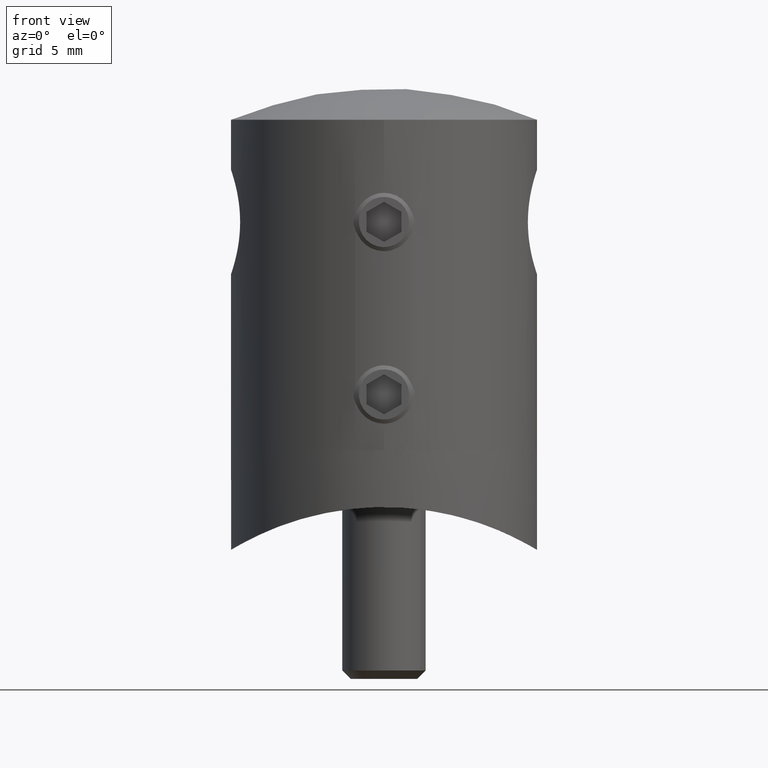
[diagram: clean part render]
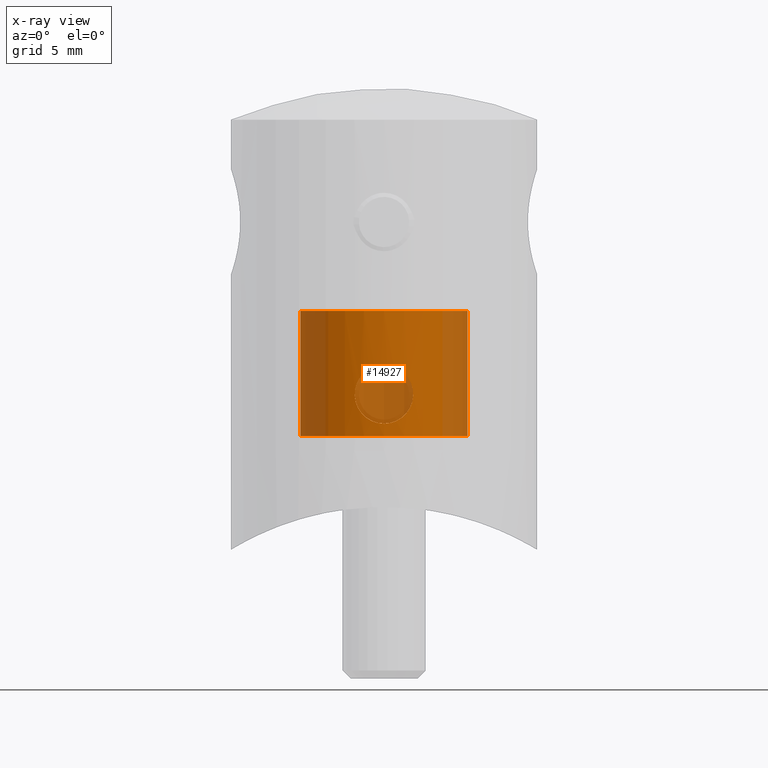
[diagram: x-ray — body ghosted, one internal face saturated and labeled with its STEP entity id]
A machine part, front view, then the same camera in x-ray: the body is ghosted and one INTERNAL B-rep face — a face not visible from any outside direction — is saturated and labeled: STEP entity #14927.
In plain terms, the highlighted cylindrical surface (bore or boss wall) has radius 6.05 mm, axis along (0, 0, -1).
Its self-contained STEP definition (entity closure, byte-faithful):
#50 = AXIS2_PLACEMENT_3D ( 'NONE', #5814, #4445, #4497 ) ;
#234 = EDGE_LOOP ( 'NONE', ( #8633 ) ) ;
#472 = EDGE_CURVE ( 'NONE', #11487, #11487, #13563, .T. ) ;
#528 = AXIS2_PLACEMENT_3D ( 'NONE', #15584, #6222, #8918 ) ;
#788 = B_SPLINE_CURVE_WITH_KNOTS ( 'NONE', 3,
 ( #3798, #7928, #824, #4917, #11792, #14414, #15781, #7688, #3677, #17123, #4971, #9044, #11735, #13107, #9105, #13166, #14528, #12101, #16187, #13521, #2735, #5449, #14832, #12205, #8102, #3975, #13463, #3854, #5337, #10839, #6712, #13406, #12039, #6829, #1248, #17525, #4083, #9508, #14932, #14709, #5282, #8050, #13576, #8150, #13356, #10790, #3912, #16296, #6775, #10678, #2621, #12149, #9396, #1121, #4031, #16134, #8207, #14771, #2567, #6655 ),
 .UNSPECIFIED., .T., .F.,
 ( 4, 2, 2, 2, 2, 2, 2, 2, 2, 2, 2, 2, 2, 2, 2, 2, 2, 2, 2, 2, 2, 2, 2, 2, 2, 2, 2, 2, 2, 4 ),
 ( 0.000000000000000000, 0.0004135417857046661677, 0.0008270835714093323354, 0.001240625357113998503, 0.001654167142818664671, 0.002481250714227997006, 0.002894792499932662740, 0.003308334285637328474, 0.003721876071341993775, 0.004135417857046659075, 0.004548959642751324375, 0.004962501428455987941, 0.005376043214160651507, 0.005789584999865314205, 0.006203126785569977771, 0.006616668571274640469, 0.007030210356979304034, 0.007443752142683966733, 0.007857293928388629431, 0.008270835714093293864, 0.009097919285502620995, 0.009511461071207285428, 0.009925002856911949861, 0.01033854464261661603, 0.01075208642832128046, 0.01157916999973060933, 0.01199271178543527550, 0.01240625357113993993, 0.01281979535684460436, 0.01323333714254926706 ),
 .UNSPECIFIED. ) ;
#824 = CARTESIAN_POINT ( 'NONE',  ( 0.2772732166670282550, -6.045156484697385757, -11.08615960140718570 ) ) ;
#1121 = CARTESIAN_POINT ( 'NONE',  ( -1.054968530237155866, -5.958429929104765321, -10.82089231973254329 ) ) ;
#1248 = CARTESIAN_POINT ( 'NONE',  ( -0.6798199956223249796, -6.013045120364453489, -7.008341673257475257 ) ) ;
#2567 = CARTESIAN_POINT ( 'NONE',  ( -0.1399094874859273530, -6.049999999999998934, -11.09999999999999787 ) ) ;
#2621 = CARTESIAN_POINT ( 'NONE',  ( -1.677628477259460515, -5.816140520493007671, -10.29216412684446702 ) ) ;
#2735 = CARTESIAN_POINT ( 'NONE',  ( 1.820668057691347430, -5.770089499320176785, -7.944670851511660636 ) ) ;
#2807 = DIRECTION ( 'NONE',  ( 0.000000000000000000, 1.000000000000000000, 1.433655765270088355E-16 ) ) ;
#2849 = EDGE_LOOP ( 'NONE', ( #13475 ) ) ;
#3677 = CARTESIAN_POINT ( 'NONE',  ( 1.389485210169927321, -5.889112003224027170, -10.58043694724463357 ) ) ;
#3798 = CARTESIAN_POINT ( 'NONE',  ( -2.846030702774449139E-16, -6.049999999999999822, -11.09999999999999787 ) ) ;
#3854 = CARTESIAN_POINT ( 'NONE',  ( 0.6809899078971618502, -6.012903857969324584, -7.008770919710036296 ) ) ;
#3912 = CARTESIAN_POINT ( 'NONE',  ( -2.086446433802004563, -5.678914961500180603, -9.275580519989469863 ) ) ;
#3975 = CARTESIAN_POINT ( 'NONE',  ( 1.056540751299541947, -5.958152591912580398, -7.180007939861434707 ) ) ;
#4031 = CARTESIAN_POINT ( 'NONE',  ( -0.9348990817558912036, -5.978705317257419161, -10.88545226405776489 ) ) ;
#4083 = CARTESIAN_POINT ( 'NONE',  ( -1.056207286875700424, -5.958209884054677552, -7.179824287212644762 ) ) ;
#4226 = CARTESIAN_POINT ( 'NONE',  ( 0.000000000000000000, -1.221035599223792050E-15, -3.000000000000000888 ) ) ;
#4272 = VERTEX_POINT ( 'NONE', #10484 ) ;
#4445 = DIRECTION ( 'NONE',  ( 0.000000000000000000, 1.221035599223791951E-16, -1.000000000000000000 ) ) ;
#4497 = DIRECTION ( 'NONE',  ( 0.000000000000000000, -1.000000000000000000, 0.000000000000000000 ) ) ;
#4917 = CARTESIAN_POINT ( 'NONE',  ( 0.5471799696909567245, -6.026723109777710974, -11.03212607876413465 ) ) ;
#4971 = CARTESIAN_POINT ( 'NONE',  ( 1.833375222520310599, -5.766588150094817067, -10.05988853332625332 ) ) ;
#5282 = CARTESIAN_POINT ( 'NONE',  ( -1.832674874622926442, -5.766831447283050416, -7.938154285827224044 ) ) ;
#5337 = CARTESIAN_POINT ( 'NONE',  ( 0.5499007699519290471, -6.026500863612104020, -6.968529175330919756 ) ) ;
#5449 = CARTESIAN_POINT ( 'NONE',  ( 1.669091256392895239, -5.815745814966070348, -7.718326810072279720 ) ) ;
#5814 = CARTESIAN_POINT ( 'NONE',  ( 0.000000000000000000, -1.221035599223777406E-16, -12.00000000000001243 ) ) ;
#6222 = DIRECTION ( 'NONE',  ( -0.000000000000000000, 1.221035599223791951E-16, -1.000000000000000000 ) ) ;
#6470 = FACE_OUTER_BOUND ( 'NONE', #234, .T. ) ;
#6655 = CARTESIAN_POINT ( 'NONE',  ( -2.846030702774449139E-16, -6.049999999999999822, -11.09999999999999787 ) ) ;
#6712 = CARTESIAN_POINT ( 'NONE',  ( 0.1386168427396119451, -6.049981620882074473, -6.900052949366974886 ) ) ;
#6775 = CARTESIAN_POINT ( 'NONE',  ( -1.991284098162775074, -5.713175649488976049, -9.680838702918435956 ) ) ;
#6829 = CARTESIAN_POINT ( 'NONE',  ( -0.5484315143079885324, -6.026637946847929861, -6.968123526063984663 ) ) ;
#7688 = CARTESIAN_POINT ( 'NONE',  ( 1.282722272704272193, -5.913591182268109314, -10.66834261661130689 ) ) ;
#7782 = CIRCLE ( 'NONE', #50, 6.049999999999999822 ) ;
#7928 = CARTESIAN_POINT ( 'NONE',  ( 0.1399094874859282966, -6.050000000000001599, -11.09999999999999787 ) ) ;
#8050 = CARTESIAN_POINT ( 'NONE',  ( -1.991803295099964233, -5.712998789426672275, -8.320461176367230038 ) ) ;
#8102 = CARTESIAN_POINT ( 'NONE',  ( 1.283353766588672729, -5.913447706495243317, -7.332171301390130402 ) ) ;
#8150 = CARTESIAN_POINT ( 'NONE',  ( -2.085968176298856669, -5.679090304225507424, -8.721325616715200013 ) ) ;
#8207 = CARTESIAN_POINT ( 'NONE',  ( -0.5468863765269961208, -6.026746307767635535, -11.03219440372573956 ) ) ;
#8633 = ORIENTED_EDGE ( 'NONE', *, *, #472, .F. ) ;
#8809 = CYLINDRICAL_SURFACE ( 'NONE', #528, 6.049999999999999822 ) ;
#8832 = ORIENTED_EDGE ( 'NONE', *, *, #17110, .T. ) ;
#8918 = DIRECTION ( 'NONE',  ( 0.000000000000000000, 1.000000000000000000, 0.000000000000000000 ) ) ;
#9027 = CARTESIAN_POINT ( 'NONE',  ( 0.000000000000000000, -6.049999999999999822, -12.00000000000001243 ) ) ;
#9044 = CARTESIAN_POINT ( 'NONE',  ( 1.990986049021030047, -5.713278432952918706, -9.681638947691940444 ) ) ;
#9105 = CARTESIAN_POINT ( 'NONE',  ( 2.099901838711680124, -5.673879825887594208, -9.139667955912132769 ) ) ;
#9243 = FACE_BOUND ( 'NONE', #14956, .T. ) ;
#9396 = CARTESIAN_POINT ( 'NONE',  ( -1.281667734744786236, -5.913812107055512968, -10.66911211653557601 ) ) ;
#9472 = DIRECTION ( 'NONE',  ( -0.000000000000000000, 1.221035599223791951E-16, -1.000000000000000000 ) ) ;
#9508 = CARTESIAN_POINT ( 'NONE',  ( -1.282838274904412490, -5.913557712218290519, -7.331785559734434798 ) ) ;
#9961 = AXIS2_PLACEMENT_3D ( 'NONE', #4226, #9472, #2807 ) ;
#10073 = FACE_OUTER_BOUND ( 'NONE', #2849, .T. ) ;
#10484 = CARTESIAN_POINT ( 'NONE',  ( 0.000000000000000000, -6.049999999999999822, -11.09999999999999609 ) ) ;
#10678 = CARTESIAN_POINT ( 'NONE',  ( -1.833356115717839074, -5.766598546717018436, -10.06010383873960734 ) ) ;
#10790 = CARTESIAN_POINT ( 'NONE',  ( -2.099997222644936823, -5.673844522446161776, -9.138439339059265976 ) ) ;
#10839 = CARTESIAN_POINT ( 'NONE',  ( 0.2777502533098673565, -6.045159907950944600, -6.913826621524063576 ) ) ;
#11367 = CARTESIAN_POINT ( 'NONE',  ( 0.000000000000000000, 6.049999999999999822, -3.000000000000000000 ) ) ;
#11487 = VERTEX_POINT ( 'NONE', #11367 ) ;
#11735 = CARTESIAN_POINT ( 'NONE',  ( 2.031906570704638870, -5.698657052783162591, -9.548207368589965327 ) ) ;
#11792 = CARTESIAN_POINT ( 'NONE',  ( 0.6811580974801476618, -6.012896895511600448, -10.99121495824429040 ) ) ;
#12039 = CARTESIAN_POINT ( 'NONE',  ( -0.2759941719176380870, -6.045243525726740508, -6.913585288518047989 ) ) ;
#12101 = CARTESIAN_POINT ( 'NONE',  ( 2.032092219697879010, -5.698590089353100296, -8.452645647550122376 ) ) ;
#12149 = CARTESIAN_POINT ( 'NONE',  ( -1.388895160922097416, -5.889255232830834963, -10.58098121164392147 ) ) ;
#12205 = CARTESIAN_POINT ( 'NONE',  ( 1.388236100762571201, -5.889415680565724287, -7.418407371126505723 ) ) ;
#12725 = EDGE_CURVE ( 'NONE', #15530, #15530, #7782, .T. ) ;
#13107 = CARTESIAN_POINT ( 'NONE',  ( 2.086298412965085891, -5.678969576372753458, -9.276648808254051914 ) ) ;
#13166 = CARTESIAN_POINT ( 'NONE',  ( 2.100097112875726868, -5.673807551136180294, -8.863299646582754932 ) ) ;
#13356 = CARTESIAN_POINT ( 'NONE',  ( -2.100002776509584113, -5.673842466852675237, -8.861644933711625427 ) ) ;
#13406 = CARTESIAN_POINT ( 'NONE',  ( -0.1370078424113408966, -6.050018272139330300, -6.899947358833300015 ) ) ;
#13463 = CARTESIAN_POINT ( 'NONE',  ( 0.9337387309442389816, -5.978870465411910473, -7.114032744933029839 ) ) ;
#13475 = ORIENTED_EDGE ( 'NONE', *, *, #12725, .T. ) ;
#13521 = CARTESIAN_POINT ( 'NONE',  ( 1.885730099252477254, -5.748884500913227669, -8.065556107974956035 ) ) ;
#13563 = CIRCLE ( 'NONE', #9961, 6.050000000000000711 ) ;
#13576 = CARTESIAN_POINT ( 'NONE',  ( -2.031790601906988236, -5.698697821966189458, -8.451593586440516503 ) ) ;
#14414 = CARTESIAN_POINT ( 'NONE',  ( 0.9350300702962209831, -5.978680807457250168, -10.88537320744207904 ) ) ;
#14528 = CARTESIAN_POINT ( 'NONE',  ( 2.086199626509825489, -5.679005098974669430, -8.722931967104218032 ) ) ;
#14709 = CARTESIAN_POINT ( 'NONE',  ( -1.679013435041563085, -5.815794899478619939, -7.709183467151893510 ) ) ;
#14771 = CARTESIAN_POINT ( 'NONE',  ( -0.2772861503185984344, -6.045152451168054775, -11.08614745265201762 ) ) ;
#14832 = CARTESIAN_POINT ( 'NONE',  ( 1.581308756655631864, -5.840537573381246794, -7.611440555362619875 ) ) ;
#14927 = ADVANCED_FACE ( 'NONE', ( #9243, #10073, #6470 ), #8809, .F. ) ;
#14932 = CARTESIAN_POINT ( 'NONE',  ( -1.387985884028859696, -5.889482939333429812, -7.418128151566114603 ) ) ;
#14956 = EDGE_LOOP ( 'NONE', ( #8832 ) ) ;
#15530 = VERTEX_POINT ( 'NONE', #9027 ) ;
#15584 = CARTESIAN_POINT ( 'NONE',  ( 0.000000000000000000, 0.000000000000000000, -13.00000000000000178 ) ) ;
#15781 = CARTESIAN_POINT ( 'NONE',  ( 1.055254178886850136, -5.958387006382904083, -10.82076416189327794 ) ) ;
#16134 = CARTESIAN_POINT ( 'NONE',  ( -0.6806531321449275085, -6.012958080460188093, -10.99140097589859444 ) ) ;
#16187 = CARTESIAN_POINT ( 'NONE',  ( 1.992076325838970208, -5.712904946180972665, -8.321180947084144464 ) ) ;
#16296 = CARTESIAN_POINT ( 'NONE',  ( -2.032141678610742019, -5.698572984452232149, -9.547360523033843194 ) ) ;
#17110 = EDGE_CURVE ( 'NONE', #4272, #4272, #788, .T. ) ;
#17123 = CARTESIAN_POINT ( 'NONE',  ( 1.677515665356957619, -5.816156680805213419, -10.29218480352837695 ) ) ;
#17525 = CARTESIAN_POINT ( 'NONE',  ( -0.9334016992415116176, -5.978932021175665135, -7.113834740860747630 ) ) ;